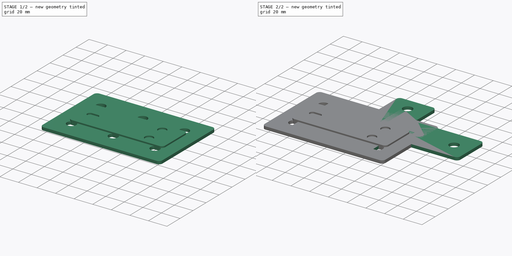
[diagram: build sequence overview — one tinted view per stage of 2, left to right]
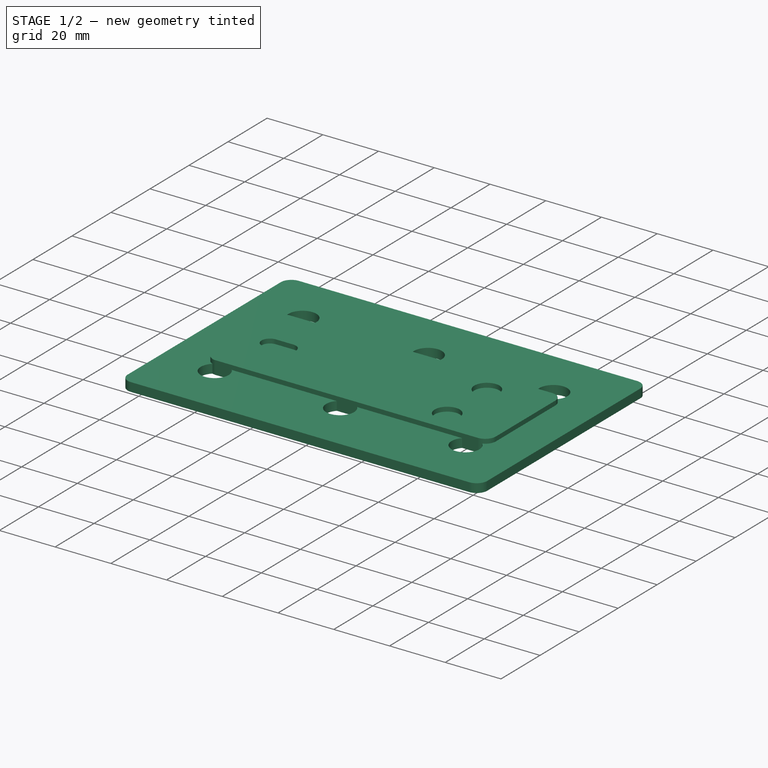
[diagram: stage 1 of 2 — iso view after this stage's code; geometry added in this stage tinted green]
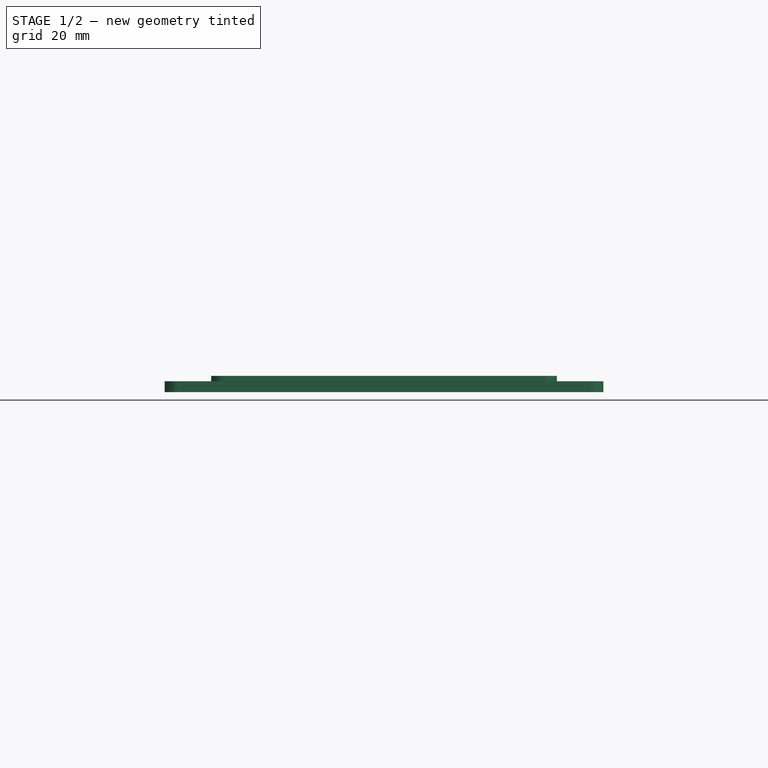
[diagram: stage 1 of 2 — front view after this stage's code; geometry added in this stage tinted green]
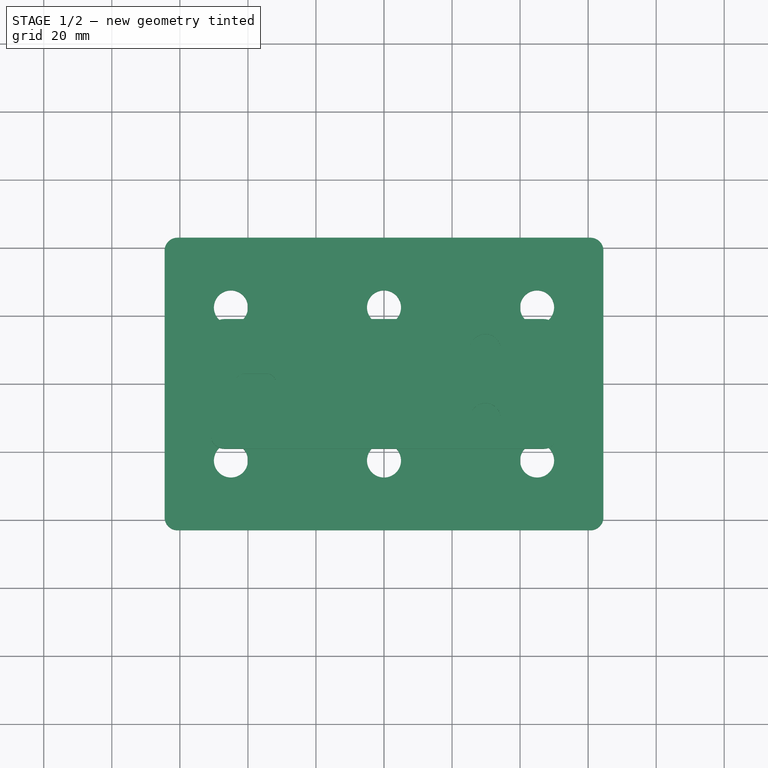
[diagram: stage 1 of 2 — top view after this stage's code; geometry added in this stage tinted green]
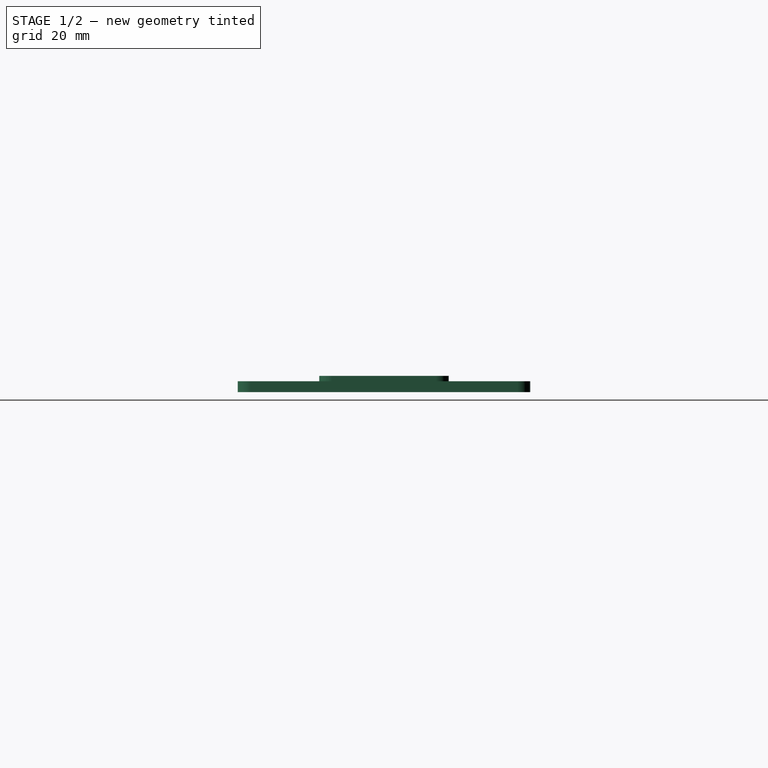
[diagram: stage 1 of 2 — right view after this stage's code; geometry added in this stage tinted green]
FCSTD DOCUMENT  (FreeCAD 0.20R)
Label: connection_plates
License: All rights reserved
LicenseURL: http://en.wikipedia.org/wiki/All_rights_reserved
objects: Sketcher::SketchObject×10, PartDesign::Body×10, Part::Part2DObjectPython×7, PartDesign::Pad×4, Spreadsheet::Sheet×1
note: 35 computed .brp shape members not serialized (recipe doc carries the construction recipe); baked Part::Feature solids carry a one-line shape summary decoded from their .brp

FEATURE [Part::Part2DObjectPython] Shape2DView  label="l_bracket_drawing"  # Draft 2D object (typed FeaturePython)
  AutoUpdate = true
  Base = -> Pad001
  Clip = false
  FuseArch = false
  HiddenLines = false
  InPlace = true
  OnlySolids = false
  Projection = (0,0,1)
  ProjectionMode = 0
  SegmentLength = 0.05
  Tessellation = false
  VisibleOnly = false
FEATURE [PartDesign::Body] Body001  label="l_bracket"
  Group = -> [Sketch001,Pad001,Shape2DView]
  Origin = -> Origin001
  Tip = -> Pad001
FEATURE [Part::Part2DObjectPython] Shape2DView001  label="4-hole_plate001"  # Draft 2D object (typed FeaturePython)
  AutoUpdate = true
  Base = -> Sketch
  Clip = false
  FuseArch = false
  HiddenLines = false
  InPlace = true
  OnlySolids = false
  Projection = (0,0,1)
  ProjectionMode = 0
  SegmentLength = 0.05
  Tessellation = false
  VisibleOnly = false
FEATURE [PartDesign::Body] Body  label="4-hole_plate"
  Group = -> [Sketch,Pad,Shape2DView001]
  Origin = -> Origin
  Tip = -> Pad
FEATURE [Sketcher::SketchObject] Sketch002
  FullyConstrained = true
  MapMode = 5
  Support = -> [XY_Plane002]
  sketch-geometry (18):
    g0: LineSegment StartX=-60.69 StartY=43 StartZ=0 EndX=60.69 EndY=43 EndZ=0
    g1: LineSegment StartX=64.5 StartY=39.19 StartZ=0 EndX=64.5 EndY=-39.19 EndZ=0
    g2: LineSegment StartX=60.69 StartY=-43 StartZ=0 EndX=-60.69 EndY=-43 EndZ=0
    g3: LineSegment StartX=-64.5 StartY=-39.19 StartZ=0 EndX=-64.5 EndY=39.19 EndZ=0
    g4: Circle CenterX=-45 CenterY=22.5 CenterZ=0 NormalX=0 NormalY=0 NormalZ=1 AngleXU=0 Radius=5
    g5: Circle CenterX=0 CenterY=22.5 CenterZ=0 NormalX=0 NormalY=0 NormalZ=1 AngleXU=0 Radius=5
    g6: Circle CenterX=0 CenterY=-22.5 CenterZ=0 NormalX=0 NormalY=0 NormalZ=1 AngleXU=0 Radius=5
    g7: Circle CenterX=-45 CenterY=-22.5 CenterZ=0 NormalX=0 NormalY=0 NormalZ=1 AngleXU=0 Radius=5
    g8: ArcOfCircle CenterX=60.69 CenterY=39.19 CenterZ=0 NormalX=0 NormalY=0 NormalZ=1 AngleXU=0 Radius=3.81 StartAngle=-9e-16 EndAngle=1.5708
    g9: GeomPoint X=64.5 Y=43 Z=0
    g10: ArcOfCircle CenterX=-60.69 CenterY=39.19 CenterZ=0 NormalX=0 NormalY=0 NormalZ=1 AngleXU=0 Radius=3.81 StartAngle=1.5708 EndAngle=3.14159
    g11: GeomPoint X=-64.5 Y=43 Z=0
    g12: ArcOfCircle CenterX=-60.69 CenterY=-39.19 CenterZ=0 NormalX=0 NormalY=0 NormalZ=1 AngleXU=0 Radius=3.81 StartAngle=3.14159 EndAngle=4.71239
    g13: GeomPoint X=-64.5 Y=-43 Z=0
    g14: ArcOfCircle CenterX=60.69 CenterY=-39.19 CenterZ=0 NormalX=0 NormalY=0 NormalZ=1 AngleXU=0 Radius=3.81 StartAngle=4.71239 EndAngle=6.28319
    g15: GeomPoint X=64.5 Y=-43 Z=0
    g16: Circle CenterX=45 CenterY=22.5 CenterZ=0 NormalX=0 NormalY=0 NormalZ=1 AngleXU=0 Radius=5
    g17: Circle CenterX=45 CenterY=-22.5 CenterZ=0 NormalX=0 NormalY=0 NormalZ=1 AngleXU=0 Radius=5
  constraints (43):
    c: Horizontal(g0)
    c: Horizontal(g2)
    c: Vertical(g1)
    c: Vertical(g3)
    c: Symmetric(g15,g11,g-1)
    c: DistanceY(g13,g11) = 86
    c: DistanceX(g11,g9) = 129
    c: Equal(g4,g7)
    c: Equal(g7,g6)
    c: Equal(g6,g5)
    c: Diameter(g4) = 10
    c: Symmetric(g4,g7,g-1)
    c: Horizontal(g5,g4)
    c: Vertical(g6,g5)
    c: DistanceY(g-1,g5) = 22.5
    c: PointOnObject(g9,g1)
    c: PointOnObject(g9,g0)
    c: Tangent(g1,g8) = 1.5708
    c: Tangent(g0,g8) = 1.5708
    c: PointOnObject(g11,g0)
    c: PointOnObject(g11,g3)
    c: Tangent(g0,g10) = 1.5708
    c: Tangent(g3,g10) = 1.5708
    c: PointOnObject(g13,g3)
    c: PointOnObject(g13,g2)
    c: Tangent(g3,g12) = 1.5708
    c: Tangent(g2,g12) = 1.5708
    c: PointOnObject(g15,g2)
    c: PointOnObject(g15,g1)
    c: Tangent(g2,g14) = 1.5708
    c: Tangent(g1,g14) = 1.5708
    c: Equal(g10,g8)
    c: Equal(g8,g14)
    c: Equal(g14,g12)
    c: Radius(g10) = 3.81
    c: DistanceX(g4,g5) = 45
    c: PointOnObject(g6,g-2)
    c: Equal(g16,g17)
    c: Equal(g17,g6)
    c: Horizontal(g6,g17)
    c: Vertical(g16,g17)
    c: Horizontal(g16,g5)
    c: Symmetric(g17,g7,g-2)
FEATURE [PartDesign::Pad] Pad002
  Direction = (0,0,1)
  Length = 3.175
  Length2 = 10
  Profile = -> Sketch002
  ReferenceAxis = -> Sketch002 [N_Axis]
  Type = 0
FEATURE [Part::Part2DObjectPython] Shape2DView002  label="6-hole_plate"  # Draft 2D object (typed FeaturePython)
  AutoUpdate = true
  Base = -> Sketch002
  Clip = false
  FuseArch = false
  HiddenLines = false
  InPlace = true
  OnlySolids = false
  Projection = (0,0,1)
  ProjectionMode = 0
  SegmentLength = 0.05
  Tessellation = false
  VisibleOnly = false
FEATURE [PartDesign::Body] Body002  label="6-hole_plate002"
  Group = -> [Sketch002,Pad002,Shape2DView002]
  Origin = -> Origin002
  Tip = -> Pad002
FEATURE [Sketcher::SketchObject] Sketch003
  FullyConstrained = true
  MapMode = 5
  Support = -> [XY_Plane003]
  sketch-geometry (19):
    g0: LineSegment StartX=-46.99 StartY=19.05 StartZ=0 EndX=46.99 EndY=19.05 EndZ=0
    g1: LineSegment StartX=50.8 StartY=15.24 StartZ=0 EndX=50.8 EndY=-15.24 EndZ=0
    g2: LineSegment StartX=46.99 StartY=-19.05 StartZ=0 EndX=-46.99 EndY=-19.05 EndZ=0
    g3: LineSegment StartX=-50.8 StartY=-15.24 StartZ=0 EndX=-50.8 EndY=15.24 EndZ=0
    g4: Circle CenterX=29.8 CenterY=10.16 CenterZ=0 NormalX=0 NormalY=0 NormalZ=1 AngleXU=0 Radius=4.5
    g5: Circle CenterX=29.8 CenterY=-10.16 CenterZ=0 NormalX=0 NormalY=0 NormalZ=1 AngleXU=0 Radius=4.5
    g6: ArcOfCircle CenterX=-40.939 CenterY=0 CenterZ=0 NormalX=0 NormalY=0 NormalZ=1 AngleXU=0 Radius=3 StartAngle=1.5708 EndAngle=4.71239
    g7: ArcOfCircle CenterX=-34.589 CenterY=0 CenterZ=0 NormalX=0 NormalY=0 NormalZ=1 AngleXU=0 Radius=3 StartAngle=4.71239 EndAngle=7.85398
    g8: LineSegment StartX=-40.939 StartY=-3 StartZ=0 EndX=-34.589 EndY=-3 EndZ=0
    g9: LineSegment StartX=-34.589 StartY=3 StartZ=0 EndX=-40.939 EndY=3 EndZ=0
    g10: GeomPoint X=-37.764 Y=0 Z=0
    g11: ArcOfCircle CenterX=-46.99 CenterY=15.24 CenterZ=0 NormalX=0 NormalY=0 NormalZ=1 AngleXU=0 Radius=3.81 StartAngle=1.5708 EndAngle=3.14159
    g12: GeomPoint X=-50.8 Y=19.05 Z=0
    g13: ArcOfCircle CenterX=-46.99 CenterY=-15.24 CenterZ=0 NormalX=0 NormalY=0 NormalZ=1 AngleXU=0 Radius=3.81 StartAngle=3.14159 EndAngle=4.71239
    g14: GeomPoint X=-50.8 Y=-19.05 Z=0
    g15: ArcOfCircle CenterX=46.99 CenterY=-15.24 CenterZ=0 NormalX=0 NormalY=0 NormalZ=1 AngleXU=0 Radius=3.81 StartAngle=4.71239 EndAngle=6.28319
    g16: GeomPoint X=50.8 Y=-19.05 Z=0
    g17: ArcOfCircle CenterX=46.99 CenterY=15.24 CenterZ=0 NormalX=0 NormalY=0 NormalZ=1 AngleXU=0 Radius=3.81 StartAngle=5e-16 EndAngle=1.5708
    g18: GeomPoint X=50.8 Y=19.05 Z=0
  constraints (43):
    c: Horizontal(g0)
    c: Horizontal(g2)
    c: Vertical(g1)
    c: Vertical(g3)
    c: DistanceX(g12,g18) = 101.6
    c: Symmetric(g18,g14,g-1)
    c: DistanceY(g14,g12) = 38.1
    c: Symmetric(g4,g5,g-1)
    c: Tangent(g6,g8) = -1.5708
    c: Tangent(g8,g7) = -1.5708
    c: Tangent(g7,g9) = -1.5708
    c: Tangent(g9,g6) = -1.5708
    c: Equal(g6,g7)
    c: PointOnObject(g6,g-1)
    c: PointOnObject(g7,g-1)
    c: DistanceX(g10,g5) = 67.564
    c: Symmetric(g6,g7,g10)
    c: Diameter(g7) = 6
    c: DistanceX(g9,g9) = 6.35
    c: Diameter(g4) = 9
    c: Equal(g5,g4)
    c: DistanceY(g-1,g4) = 10.16
    c: PointOnObject(g12,g3)
    c: PointOnObject(g12,g0)
    c: Tangent(g3,g11) = 1.5708
    c: Tangent(g0,g11) = 1.5708
    c: PointOnObject(g14,g3)
    c: PointOnObject(g14,g2)
    c: Tangent(g3,g13) = 1.5708
    c: Tangent(g2,g13) = 1.5708
    c: PointOnObject(g16,g2)
    c: PointOnObject(g16,g1)
    c: Tangent(g2,g15) = 1.5708
    c: Tangent(g1,g15) = 1.5708
    c: PointOnObject(g18,g1)
    c: PointOnObject(g18,g0)
    c: Tangent(g1,g17) = 1.5708
    c: Tangent(g0,g17) = 1.5708
    c: Equal(g11,g13)
    c: Equal(g13,g15)
    c: Equal(g15,g17)
    c: Radius(g11) = 3.81
    c: DistanceX(g5,g1) = 21
FEATURE [PartDesign::Pad] Pad003
  Direction = (0,0,1)
  Length = 4.7625
  Length2 = 10
  Profile = -> Sketch003
  ReferenceAxis = -> Sketch003 [N_Axis]
  Type = 0
FEATURE [Part::Part2DObjectPython] Shape2DView003  label="trolley-bracket"  # Draft 2D object (typed FeaturePython)
  AutoUpdate = true
  Base = -> Pad003
  Clip = false
  FuseArch = false
  HiddenLines = false
  InPlace = true
  OnlySolids = false
  Projection = (0,0,1)
  ProjectionMode = 0
  SegmentLength = 0.05
  Tessellation = false
  VisibleOnly = false
FEATURE [PartDesign::Body] Body003  label="window-trolley-bracket"
  Group = -> [Sketch003,Pad003,Shape2DView003]
  Origin = -> Origin003
  Tip = -> Pad003
FEATURE [Sketcher::SketchObject] Sketch004
  FullyConstrained = true
  MapMode = 5
  Support = -> [XY_Plane004]
  sketch-geometry (14):
    g0: LineSegment StartX=-23.2 StartY=25.4 StartZ=0 EndX=23.2 EndY=25.4 EndZ=0
    g1: LineSegment StartX=27.01 StartY=21.59 StartZ=0 EndX=27.01 EndY=-21.59 EndZ=0
    g2: LineSegment StartX=23.2 StartY=-25.4 StartZ=0 EndX=-23.2 EndY=-25.4 EndZ=0
    g3: LineSegment StartX=-27.01 StartY=-21.59 StartZ=0 EndX=-27.01 EndY=21.59 EndZ=0
    g4: Circle CenterX=6.01 CenterY=16.51 CenterZ=0 NormalX=0 NormalY=0 NormalZ=1 AngleXU=0 Radius=4.5
    g5: Circle CenterX=6.01 CenterY=-16.51 CenterZ=0 NormalX=0 NormalY=0 NormalZ=1 AngleXU=0 Radius=4.5
    g6: ArcOfCircle CenterX=23.2 CenterY=21.59 CenterZ=0 NormalX=0 NormalY=0 NormalZ=1 AngleXU=0 Radius=3.81 StartAngle=0 EndAngle=1.5708
    g7: GeomPoint X=27.01 Y=25.4 Z=0
    g8: ArcOfCircle CenterX=-23.2 CenterY=21.59 CenterZ=0 NormalX=0 NormalY=0 NormalZ=1 AngleXU=0 Radius=3.81 StartAngle=1.5708 EndAngle=3.14159
    g9: GeomPoint X=-27.01 Y=25.4 Z=0
    g10: ArcOfCircle CenterX=-23.2 CenterY=-21.59 CenterZ=0 NormalX=0 NormalY=0 NormalZ=1 AngleXU=0 Radius=3.81 StartAngle=3.14159 EndAngle=4.71239
    g11: GeomPoint X=-27.01 Y=-25.4 Z=0
    g12: ArcOfCircle CenterX=23.2 CenterY=-21.59 CenterZ=0 NormalX=0 NormalY=0 NormalZ=1 AngleXU=0 Radius=3.81 StartAngle=4.71239 EndAngle=6.28319
    g13: GeomPoint X=27.01 Y=-25.4 Z=0
  constraints (32):
    c: Horizontal(g0)
    c: Horizontal(g2)
    c: Vertical(g1)
    c: Vertical(g3)
    c: Symmetric(g7,g11,g-1)
    c: DistanceY(g13,g7) = 50.8
    c: Equal(g4,g5)
    c: Symmetric(g5,g4,g-1)
    c: Diameter(g4) = 9
    c: DistanceX(g4,g7) = 21
    c: DistanceX(g9,g4) = 33.02
    c: DistanceY(g5,g-1) = 16.51
    c: PointOnObject(g7,g1)
    c: PointOnObject(g7,g0)
    c: Tangent(g1,g6) = 1.5708
    c: Tangent(g0,g6) = 1.5708
    c: PointOnObject(g9,g0)
    c: PointOnObject(g9,g3)
    c: Tangent(g0,g8) = 1.5708
    c: Tangent(g3,g8) = 1.5708
    c: PointOnObject(g11,g3)
    c: PointOnObject(g11,g2)
    c: Tangent(g3,g10) = 1.5708
    c: Tangent(g2,g10) = 1.5708
    c: PointOnObject(g13,g2)
    c: PointOnObject(g13,g1)
    c: Tangent(g2,g12) = 1.5708
    c: Tangent(g1,g12) = 1.5708
    c: Equal(g8,g6)
    c: Equal(g6,g12)
    c: Equal(g12,g10)
    c: Radius(g8) = 3.81
FEATURE [PartDesign::Body] Body004  label="window-inside-bracket"
  Group = -> [Sketch004]
  Origin = -> Origin004
FEATURE [Sketcher::SketchObject] Sketch005
  FullyConstrained = false
  MapMode = 5
  Support = -> [XY_Plane005]
  sketch-geometry (30):
    g0: LineSegment StartX=43.5 StartY=0 StartZ=0 EndX=43.5 EndY=-90 EndZ=0
    g1: LineSegment StartX=43.5 StartY=-90 StartZ=0 EndX=-43.5 EndY=-90 EndZ=0
    g2: LineSegment StartX=-43.5 StartY=-90 StartZ=0 EndX=-43.5 EndY=0 EndZ=0
    g3: Circle CenterX=-22.5 CenterY=66 CenterZ=0 NormalX=0 NormalY=0 NormalZ=1 AngleXU=0 Radius=4.5
    g4: Circle CenterX=-22.5 CenterY=21 CenterZ=0 NormalX=0 NormalY=0 NormalZ=1 AngleXU=0 Radius=4.5
    g5: Circle CenterX=-22.5 CenterY=-24 CenterZ=0 NormalX=0 NormalY=0 NormalZ=1 AngleXU=0 Radius=4.5
    g6: Circle CenterX=-22.5 CenterY=-69 CenterZ=0 NormalX=0 NormalY=0 NormalZ=1 AngleXU=0 Radius=4.5
    g7: Circle CenterX=22.5 CenterY=-24 CenterZ=0 NormalX=0 NormalY=0 NormalZ=1 AngleXU=0 Radius=4.5
    g8: Circle CenterX=22.5 CenterY=-69 CenterZ=0 NormalX=0 NormalY=0 NormalZ=1 AngleXU=0 Radius=4.5
    g9: Circle CenterX=22.5 CenterY=21 CenterZ=0 NormalX=0 NormalY=0 NormalZ=1 AngleXU=0 Radius=4.5
    g10: Circle CenterX=22.5 CenterY=66 CenterZ=0 NormalX=0 NormalY=0 NormalZ=1 AngleXU=0 Radius=4.5
    g11: Circle CenterX=-67.5 CenterY=66 CenterZ=0 NormalX=0 NormalY=0 NormalZ=1 AngleXU=0 Radius=4.5
    g12: Circle CenterX=-67.5 CenterY=21 CenterZ=0 NormalX=0 NormalY=0 NormalZ=1 AngleXU=0 Radius=4.5
    g13: Circle CenterX=67.5 CenterY=66 CenterZ=0 NormalX=0 NormalY=0 NormalZ=1 AngleXU=0 Radius=4.5
    g14: Circle CenterX=67.5 CenterY=21 CenterZ=0 NormalX=0 NormalY=0 NormalZ=1 AngleXU=0 Radius=4.5
    g15: LineSegment StartX=-67.5 StartY=66 StartZ=0 EndX=-22.5 EndY=66 EndZ=0
    g16: LineSegment StartX=-22.5 StartY=66 StartZ=0 EndX=22.5 EndY=66 EndZ=0
    g17: LineSegment StartX=22.5 StartY=66 StartZ=0 EndX=67.5 EndY=66 EndZ=0
    g18: LineSegment StartX=-22.5 StartY=66 StartZ=0 EndX=-22.5 EndY=21 EndZ=0
    g19: LineSegment StartX=-22.5 StartY=-24 StartZ=0 EndX=-22.5 EndY=21 EndZ=0
    g20: LineSegment StartX=-22.5 StartY=-24 StartZ=0 EndX=-22.5 EndY=-69 EndZ=0
    g21: LineSegment StartX=88.5 StartY=87 StartZ=0 EndX=88.5 EndY=0 EndZ=0
    g22: LineSegment StartX=88.5 StartY=0 StartZ=0 EndX=43.5 EndY=0 EndZ=0
    g23: LineSegment StartX=-43.5 StartY=0 StartZ=0 EndX=-88.5 EndY=0 EndZ=0
    g24: LineSegment StartX=-88.5 StartY=0 StartZ=0 EndX=-88.5 EndY=87 EndZ=0
    g25: LineSegment StartX=88.5 StartY=87 StartZ=0 EndX=-88.5 EndY=87 EndZ=0
    g26: Circle CenterX=-106.613 CenterY=66 CenterZ=0 NormalX=0 NormalY=0 NormalZ=1 AngleXU=0 Radius=4.5
    g27: Circle CenterX=-106.613 CenterY=21 CenterZ=0 NormalX=0 NormalY=0 NormalZ=1 AngleXU=0 Radius=4.5
    g28: Circle CenterX=106.658 CenterY=21 CenterZ=0 NormalX=0 NormalY=0 NormalZ=1 AngleXU=0 Radius=4.5
    g29: Circle CenterX=106.658 CenterY=66 CenterZ=0 NormalX=0 NormalY=0 NormalZ=1 AngleXU=0 Radius=4.5
  constraints (79):
    c: Coincident(g0,g1)
    c: Coincident(g1,g2)
    c: Horizontal(g1)
    c: Vertical(g0)
    c: Vertical(g2)
    c: Equal(g11,g12)
    c: Equal(g12,g3)
    c: Equal(g3,g4)
    c: Equal(g4,g5)
    c: Equal(g5,g6)
    c: Equal(g6,g8)
    c: Equal(g8,g7)
    c: Equal(g7,g9)
    c: Equal(g9,g10)
    c: Equal(g10,g13)
    c: Equal(g13,g14)
    c: Diameter(g11) = 9
    c: Horizontal(g11,g3)
    c: Horizontal(g10,g13)
    c: Horizontal(g12,g4)
    c: Horizontal(g4,g9)
    c: Horizontal(g9,g14)
    c: Horizontal(g5,g7)
    c: Horizontal(g8,g6)
    c: Vertical(g6,g5)
    c: Vertical(g5,g4)
    c: Vertical(g4,g3)
    c: Vertical(g12,g11)
    c: Vertical(g10,g9)
    c: Vertical(g9,g7)
    c: Vertical(g7,g8)
    c: Vertical(g14,g13)
    c: Coincident(g15,g11)
    c: Coincident(g15,g3)
    c: Coincident(g16,g3)
    c: Coincident(g16,g10)
    c: Coincident(g17,g10)
    c: Coincident(g17,g13)
    c: Equal(g17,g16)
    c: Equal(g16,g15)
    c: DistanceX(g17,g17) = 45
    c: Coincident(g18,g3)
    c: Coincident(g18,g4)
    c: Coincident(g19,g5)
    c: Coincident(g19,g4)
    c: Coincident(g20,g5)
    c: Coincident(g20,g6)
    c: Equal(g18,g19)
    c: Equal(g19,g20)
    c: PointOnObject(g21,g-1)
    c: Vertical(g21)
    c: Coincident(g21,g22)
    c: Horizontal(g22)
    c: PointOnObject(g23,g-1)
    c: Coincident(g23,g24)
    c: Vertical(g24)
    c: Coincident(g2,g23)
    c: Coincident(g0,g22)
    c: Symmetric(g2,g0,g-2)
    c: Symmetric(g21,g24,g-2)
    c: Coincident(g25,g21)
    c: Coincident(g25,g24)
    c: Symmetric(g10,g3,g-2)
    c: Equal(g18,g16)
    c: DistanceX(g13,g21) = 21
    c: DistanceY(g13,g21) = 21
    c: DistanceY(g21,g14) = 21
    c: DistanceX(g7,g0) = 21
    c: DistanceY(g0,g8) = 21
    c: Equal(g13,g29)
    c: Equal(g29,g28)
    c: Equal(g28,g27)
    c: Equal(g27,g26)
    c: Horizontal(g26,g29)
    c: Horizontal(g29,g13)
    c: Horizontal(g27,g12)
    c: Horizontal(g12,g28)
    c: Vertical(g27,g26)
    c: Vertical(g29,g28)
FEATURE [PartDesign::Body] Body005  label="leg_corner-bracket"
  Group = -> [Sketch005]
  Origin = -> Origin005
FEATURE [Sketcher::SketchObject] Sketch006
  FullyConstrained = true
  MapMode = 5
  Support = -> [XY_Plane006]
  sketch-geometry (33):
    g0: Circle CenterX=59.6 CenterY=-1.4e-15 CenterZ=0 NormalX=0 NormalY=0 NormalZ=1 AngleXU=0 Radius=4.5
    g1: Circle CenterX=97.7 CenterY=-1.4e-15 CenterZ=0 NormalX=0 NormalY=0 NormalZ=1 AngleXU=0 Radius=4.5
    g2: Circle CenterX=21.5 CenterY=-1.4e-15 CenterZ=0 NormalX=0 NormalY=0 NormalZ=1 AngleXU=0 Radius=4.5
    g3: Circle CenterX=21.5 CenterY=38.1 CenterZ=0 NormalX=0 NormalY=0 NormalZ=1 AngleXU=0 Radius=4.5
    g4: Circle CenterX=21.5 CenterY=-38.1 CenterZ=0 NormalX=0 NormalY=0 NormalZ=1 AngleXU=0 Radius=4.5
    g5: LineSegment StartX=97.7 StartY=-1.4e-15 StartZ=0 EndX=59.6 EndY=-1.4e-15 EndZ=0
    g6: LineSegment StartX=59.6 StartY=-1.4e-15 StartZ=0 EndX=21.5 EndY=-1.4e-15 EndZ=0
    g7: LineSegment StartX=21.5 StartY=-1.4e-15 StartZ=0 EndX=21.5 EndY=-38.1 EndZ=0
    g8: LineSegment StartX=21.5 StartY=-1.4e-15 StartZ=0 EndX=21.5 EndY=38.1 EndZ=0
    g9: LineSegment StartX=0 StartY=55.29 StartZ=0 EndX=0 EndY=-55.29 EndZ=0
    g10: LineSegment StartX=3.81 StartY=-59.1 StartZ=0 EndX=39.19 EndY=-59.1 EndZ=0
    g11: LineSegment StartX=43 StartY=-55.29 StartZ=0 EndX=43 EndY=-25.31 EndZ=0
    g12: LineSegment StartX=46.81 StartY=-21.5 StartZ=0 EndX=114.89 EndY=-21.5 EndZ=0
    g13: LineSegment StartX=118.7 StartY=-17.69 StartZ=0 EndX=118.7 EndY=17.69 EndZ=0
    g14: LineSegment StartX=114.89 StartY=21.5 StartZ=0 EndX=46.81 EndY=21.5 EndZ=0
    g15: LineSegment StartX=43 StartY=25.31 StartZ=0 EndX=43 EndY=55.29 EndZ=0
    g16: LineSegment StartX=39.19 StartY=59.1 StartZ=0 EndX=3.81 EndY=59.1 EndZ=0
    g17: ArcOfCircle CenterX=39.19 CenterY=55.29 CenterZ=0 NormalX=0 NormalY=0 NormalZ=1 AngleXU=0 Radius=3.81 StartAngle=0 EndAngle=1.5708
    g18: GeomPoint X=43 Y=59.1 Z=0
    g19: ArcOfCircle CenterX=3.81 CenterY=55.29 CenterZ=0 NormalX=0 NormalY=0 NormalZ=1 AngleXU=0 Radius=3.81 StartAngle=1.5708 EndAngle=3.14159
    g20: GeomPoint X=0 Y=59.1 Z=0
    g21: ArcOfCircle CenterX=3.81 CenterY=-55.29 CenterZ=0 NormalX=0 NormalY=0 NormalZ=1 AngleXU=0 Radius=3.81 StartAngle=3.14159 EndAngle=4.71239
    g22: GeomPoint X=0 Y=-59.1 Z=0
    g23: ArcOfCircle CenterX=39.19 CenterY=-55.29 CenterZ=0 NormalX=0 NormalY=0 NormalZ=1 AngleXU=0 Radius=3.81 StartAngle=4.71239 EndAngle=6.28319
    g24: GeomPoint X=43 Y=-59.1 Z=0
    g25: ArcOfCircle CenterX=114.89 CenterY=17.69 CenterZ=0 NormalX=0 NormalY=0 NormalZ=1 AngleXU=0 Radius=3.81 StartAngle=6e-16 EndAngle=1.5708
    g26: GeomPoint X=118.7 Y=21.5 Z=0
    g27: ArcOfCircle CenterX=114.89 CenterY=-17.69 CenterZ=0 NormalX=0 NormalY=0 NormalZ=1 AngleXU=0 Radius=3.81 StartAngle=4.71239 EndAngle=6.28319
    g28: GeomPoint X=118.7 Y=-21.5 Z=0
    g29: ArcOfCircle CenterX=46.81 CenterY=25.31 CenterZ=0 NormalX=0 NormalY=0 NormalZ=1 AngleXU=0 Radius=3.81 StartAngle=3.14159 EndAngle=4.71239
    g30: GeomPoint X=43 Y=21.5 Z=0
    g31: ArcOfCircle CenterX=46.81 CenterY=-25.31 CenterZ=0 NormalX=0 NormalY=0 NormalZ=1 AngleXU=0 Radius=3.81 StartAngle=1.5708 EndAngle=3.14159
    g32: GeomPoint X=43 Y=-21.5 Z=0
  constraints (76):
    c: Vertical(g4,g2)
    c: Vertical(g2,g3)
    c: Horizontal(g2,g0)
    c: Horizontal(g0,g1)
    c: Equal(g3,g2)
    c: Equal(g2,g4)
    c: Equal(g4,g0)
    c: Equal(g0,g1)
    c: Diameter(g1) = 9
    c: Coincident(g5,g1)
    c: Coincident(g5,g0)
    c: Coincident(g6,g0)
    c: Coincident(g6,g2)
    c: Coincident(g7,g2)
    c: Coincident(g7,g4)
    c: Coincident(g8,g2)
    c: Coincident(g8,g3)
    c: Equal(g5,g6)
    c: Equal(g6,g7)
    c: Equal(g7,g8)
    c: DistanceX(g5,g5) = 38.1
    c: PointOnObject(g20,g-2)
    c: Vertical(g11)
    c: Horizontal(g12)
    c: Horizontal(g14)
    c: Vertical(g15)
    c: Horizontal(g16)
    c: DistanceY(g22,g4) = 21
    c: Symmetric(g20,g22,g-1)
    c: DistanceY(g3,g20) = 21
    c: Symmetric(g28,g26,g-1)
    c: DistanceY(g28,g26) = 43
    c: DistanceX(g1,g26) = 21
    c: Symmetric(g22,g24,g7)
    c: PointOnObject(g18,g16)
    c: PointOnObject(g18,g15)
    c: Tangent(g16,g17) = -1.5708
    c: Tangent(g15,g17) = -1.5708
    c: PointOnObject(g20,g9)
    c: PointOnObject(g20,g16)
    c: Tangent(g9,g19) = -1.5708
    c: Tangent(g16,g19) = -1.5708
    c: PointOnObject(g22,g9)
    c: PointOnObject(g22,g10)
    c: Tangent(g9,g21) = -1.5708
    c: Tangent(g10,g21) = -1.5708
    c: PointOnObject(g24,g10)
    c: PointOnObject(g24,g11)
    c: Tangent(g10,g23) = -1.5708
    c: Tangent(g11,g23) = -1.5708
    c: PointOnObject(g26,g14)
    c: PointOnObject(g26,g13)
    c: Tangent(g14,g25) = -1.5708
    c: Tangent(g13,g25) = -1.5708
    c: PointOnObject(g28,g13)
    c: PointOnObject(g28,g12)
    c: Tangent(g13,g27) = -1.5708
    c: Tangent(g12,g27) = -1.5708
    c: Equal(g19,g17)
    c: Equal(g17,g21)
    c: Equal(g21,g23)
    c: Equal(g23,g27)
    c: Equal(g27,g25)
    c: Radius(g17) = 3.81
    c: Equal(g16,g13)
    c: Equal(g10,g13)
    c: PointOnObject(g30,g14)
    c: PointOnObject(g30,g15)
    c: Tangent(g14,g29) = 1.5708
    c: Tangent(g15,g29) = 1.5708
    c: PointOnObject(g32,g11)
    c: PointOnObject(g32,g12)
    c: Tangent(g11,g31) = 1.5708
    c: Tangent(g12,g31) = 1.5708
    c: Equal(g29,g31)
    c: Equal(g31,g25)
FEATURE [Part::Part2DObjectPython] Shape2DView004  label="t-bracket"  # Draft 2D object (typed FeaturePython)
  AutoUpdate = true
  Base = -> Sketch006
  Clip = false
  FuseArch = false
  HiddenLines = false
  InPlace = true
  OnlySolids = false
  Projection = (0,0,1)
  ProjectionMode = 0
  SegmentLength = 0.05
  Tessellation = false
  VisibleOnly = false
FEATURE [PartDesign::Body] Body006  label="T-bracket"
  Group = -> [Sketch006,Shape2DView004]
  Origin = -> Origin006
FEATURE [Sketcher::SketchObject] Sketch007
  FullyConstrained = true
  MapMode = 5
  Support = -> [XY_Plane007]
  expr: Constraints[23] = <<Spreadsheet>>.hole_diameter
  expr: Constraints[43] = <<Spreadsheet>>.corner_radius
  sketch-geometry (19):
    g0: LineSegment StartX=4 StartY=0 StartZ=0 EndX=174.999 EndY=0 EndZ=0
    g1: LineSegment StartX=178.999 StartY=4 StartZ=0 EndX=178.999 EndY=40 EndZ=0
    g2: LineSegment StartX=174.999 StartY=44 StartZ=0 EndX=4 EndY=44 EndZ=0
    g3: LineSegment StartX=0 StartY=40 StartZ=0 EndX=0 EndY=4 EndZ=0
    g4: Circle CenterX=156.999 CenterY=22 CenterZ=0 NormalX=0 NormalY=0 NormalZ=1 AngleXU=0 Radius=4.5
    g5: Circle CenterX=111.999 CenterY=22 CenterZ=0 NormalX=0 NormalY=0 NormalZ=1 AngleXU=0 Radius=4.5
    g6: Circle CenterX=66.9989 CenterY=22 CenterZ=0 NormalX=0 NormalY=0 NormalZ=1 AngleXU=0 Radius=4.5
    g7: Circle CenterX=21.9989 CenterY=22 CenterZ=0 NormalX=0 NormalY=0 NormalZ=1 AngleXU=0 Radius=4.5
    g8: LineSegment StartX=21.9989 StartY=22 StartZ=0 EndX=66.9989 EndY=22 EndZ=0
    g9: LineSegment StartX=66.9989 StartY=22 StartZ=0 EndX=111.999 EndY=22 EndZ=0
    g10: LineSegment StartX=111.999 StartY=22 StartZ=0 EndX=156.999 EndY=22 EndZ=0
    g11: ArcOfCircle CenterX=174.999 CenterY=40 CenterZ=0 NormalX=0 NormalY=0 NormalZ=1 AngleXU=0 Radius=4 StartAngle=5e-16 EndAngle=1.5708
    g12: GeomPoint X=178.999 Y=44 Z=0
    g13: ArcOfCircle CenterX=174.999 CenterY=4 CenterZ=0 NormalX=0 NormalY=0 NormalZ=1 AngleXU=0 Radius=4 StartAngle=4.71239 EndAngle=6.28319
    g14: GeomPoint X=178.999 Y=0 Z=0
    g15: ArcOfCircle CenterX=4 CenterY=4 CenterZ=0 NormalX=0 NormalY=0 NormalZ=1 AngleXU=0 Radius=4 StartAngle=3.14159 EndAngle=4.71239
    g16: GeomPoint X=0 Y=0 Z=0
    g17: ArcOfCircle CenterX=4 CenterY=40 CenterZ=0 NormalX=0 NormalY=0 NormalZ=1 AngleXU=0 Radius=4 StartAngle=1.5708 EndAngle=3.14159
    g18: GeomPoint X=0 Y=44 Z=0
  constraints (44):
    c: Horizontal(g0)
    c: Horizontal(g2)
    c: Vertical(g1)
    c: Vertical(g3)
    c: Equal(g7,g6)
    c: Equal(g6,g5)
    c: Equal(g5,g4)
    c: Horizontal(g5,g6)
    c: Horizontal(g6,g7)
    c: DistanceY(g14,g12) = 44
    c: Coincident(g8,g7)
    c: Coincident(g8,g6)
    c: Coincident(g9,g6)
    c: Coincident(g9,g5)
    c: Coincident(g10,g5)
    c: Coincident(g10,g4)
    c: Equal(g8,g9)
    c: Equal(g9,g10)
    c: DistanceX(g10,g10) = 45
    c: Symmetric(g14,g12,g10)
    c: Coincident(g16,g-1)
    c: DistanceX(g4,g14) = 22
    c: DistanceX(g16,g7) = 21.9989
    c: Diameter(g6) = 9
    c: PointOnObject(g12,g2)
    c: PointOnObject(g12,g1)
    c: Tangent(g2,g11) = -1.5708
    c: Tangent(g1,g11) = -1.5708
    c: PointOnObject(g14,g1)
    c: PointOnObject(g14,g0)
    c: Tangent(g1,g13) = -1.5708
    c: Tangent(g0,g13) = -1.5708
    c: PointOnObject(g16,g0)
    c: PointOnObject(g16,g3)
    c: Tangent(g0,g15) = -1.5708
    c: Tangent(g3,g15) = -1.5708
    c: PointOnObject(g18,g3)
    c: PointOnObject(g18,g2)
    c: Tangent(g3,g17) = -1.5708
    c: Tangent(g2,g17) = -1.5708
    c: Equal(g17,g15)
    c: Equal(g15,g13)
    c: Equal(g13,g11)
    c: Radius(g11) = 4
FEATURE [PartDesign::Body] Body007  label="4-hole-inline"
  Group = -> [Sketch007]
  Origin = -> Origin007
FEATURE [Spreadsheet::Sheet] Spreadsheet
  cells = A1=hole_diameter; B1(hole_diameter)=9; C1=mm; A2=width; B2=44; C2=mm; A3=corner_radius; B3(corner_radius)=4; C3=mm
FEATURE [Sketcher::SketchObject] Sketch008  label="3-hole"
  FullyConstrained = false
  MapMode = 5
  Support = -> [XY_Plane008]
  expr: Constraints[33] = <<Spreadsheet>>.corner_radius
  expr: Constraints[36] = <<Spreadsheet>>.hole_diameter
  sketch-geometry (17):
    g0: LineSegment StartX=4 StartY=0 StartZ=0 EndX=129.999 EndY=0 EndZ=0
    g1: LineSegment StartX=133.999 StartY=4 StartZ=0 EndX=133.999 EndY=40 EndZ=0
    g2: LineSegment StartX=129.999 StartY=44 StartZ=0 EndX=4 EndY=44 EndZ=0
    g3: LineSegment StartX=0 StartY=40 StartZ=0 EndX=0 EndY=4 EndZ=0
    g4: Circle CenterX=111.999 CenterY=22 CenterZ=0 NormalX=0 NormalY=0 NormalZ=1 AngleXU=0 Radius=4.5
    g5: Circle CenterX=66.9989 CenterY=22 CenterZ=0 NormalX=0 NormalY=0 NormalZ=1 AngleXU=0 Radius=4.5
    g6: Circle CenterX=21.9989 CenterY=22 CenterZ=0 NormalX=0 NormalY=0 NormalZ=1 AngleXU=0 Radius=4.5
    g7: LineSegment StartX=21.9989 StartY=22 StartZ=0 EndX=66.9989 EndY=22 EndZ=0
    g8: LineSegment StartX=66.9989 StartY=22 StartZ=0 EndX=111.999 EndY=22 EndZ=0
    g9: ArcOfCircle CenterX=129.999 CenterY=40 CenterZ=0 NormalX=0 NormalY=0 NormalZ=1 AngleXU=0 Radius=4 StartAngle=4e-16 EndAngle=1.5708
    g10: GeomPoint X=133.999 Y=44 Z=0
    g11: ArcOfCircle CenterX=129.999 CenterY=4 CenterZ=0 NormalX=0 NormalY=0 NormalZ=1 AngleXU=0 Radius=4 StartAngle=4.71239 EndAngle=6.28319
    g12: GeomPoint X=133.999 Y=0 Z=0
    g13: ArcOfCircle CenterX=4 CenterY=4 CenterZ=0 NormalX=0 NormalY=0 NormalZ=1 AngleXU=0 Radius=4 StartAngle=3.14159 EndAngle=4.71239
    g14: GeomPoint X=0 Y=0 Z=0
    g15: ArcOfCircle CenterX=4 CenterY=40 CenterZ=0 NormalX=0 NormalY=0 NormalZ=1 AngleXU=0 Radius=4 StartAngle=1.5708 EndAngle=3.14159
    g16: GeomPoint X=0 Y=44 Z=0
  constraints (37):
    c: Horizontal(g0)
    c: Horizontal(g2)
    c: Vertical(g1)
    c: Vertical(g3)
    c: Equal(g5,g4)
    c: DistanceY(g12,g10) = 44
    c: Coincident(g7,g6)
    c: Coincident(g8,g5)
    c: Coincident(g8,g4)
    c: DistanceX(g8,g8) = 45
    c: Symmetric(g12,g10,g8)
    c: Coincident(g14,g-1)
    c: DistanceX(g4,g12) = 22
    c: DistanceX(g14,g6) = 21.9989
    c: PointOnObject(g10,g2)
    c: PointOnObject(g10,g1)
    c: Tangent(g2,g9) = -1.5708
    c: Tangent(g1,g9) = -1.5708
    c: PointOnObject(g12,g1)
    c: PointOnObject(g12,g0)
    c: Tangent(g1,g11) = -1.5708
    c: Tangent(g0,g11) = -1.5708
    c: PointOnObject(g14,g0)
    c: PointOnObject(g14,g3)
    c: Tangent(g0,g13) = -1.5708
    c: Tangent(g3,g13) = -1.5708
    c: PointOnObject(g16,g3)
    c: PointOnObject(g16,g2)
    c: Tangent(g3,g15) = -1.5708
    c: Tangent(g2,g15) = -1.5708
    c: Equal(g15,g13)
    c: Equal(g13,g11)
    c: Equal(g11,g9)
    c: Radius(g9) = 4
    c: Coincident(g7,g5)
    c: Equal(g7,g8)
    c: Diameter(g6) = 9
FEATURE [Part::Part2DObjectPython] Shape2DView005  label="3-hole-2d"  # Draft 2D object (typed FeaturePython)
  AutoUpdate = true
  Base = -> Sketch008
  Clip = false
  FuseArch = false
  HiddenLines = false
  InPlace = true
  OnlySolids = false
  Projection = (0,0,1)
  ProjectionMode = 0
  SegmentLength = 0.05
  Tessellation = false
  VisibleOnly = false
FEATURE [PartDesign::Body] Body008  label="3-hole-inline"
  Group = -> [Sketch008,Shape2DView005]
  Origin = -> Origin008
FEATURE [Sketcher::SketchObject] Sketch009
  FullyConstrained = false
  MapMode = 5
  Support = -> [XY_Plane009]
  sketch-geometry (28):
    g0: LineSegment StartX=0 StartY=781.6 StartZ=0 EndX=45 EndY=781.6 EndZ=0
    g1: LineSegment StartX=45 StartY=781.6 StartZ=0 EndX=45 EndY=0 EndZ=0
    g2: LineSegment StartX=45 StartY=0 StartZ=0 EndX=0 EndY=0 EndZ=0
    g3: LineSegment StartX=0 StartY=0 StartZ=0 EndX=0 EndY=781.6 EndZ=0
    g4: LineSegment StartX=45 StartY=781.6 StartZ=0 EndX=514.267 EndY=781.6 EndZ=0
    g5: LineSegment StartX=514.267 StartY=781.6 StartZ=0 EndX=514.267 EndY=736.6 EndZ=0
    g6: LineSegment StartX=514.267 StartY=736.6 StartZ=0 EndX=45 EndY=736.6 EndZ=0
    g7: LineSegment StartX=45 StartY=736.6 StartZ=0 EndX=45 EndY=781.6 EndZ=0
    g8: LineSegment StartX=1.85987 StartY=334.546 StartZ=0 EndX=447.054 EndY=779.74 EndZ=0
    g9: LineSegment StartX=451.544 StartY=781.6 StartZ=0 EndX=487.564 EndY=781.6 EndZ=0
    g10: LineSegment StartX=493.914 StartY=775.25 StartZ=0 EndX=493.914 EndY=739.23 EndZ=0
    g11: LineSegment StartX=492.054 StartY=734.74 StartZ=0 EndX=46.8599 EndY=289.546 EndZ=0
    g12: LineSegment StartX=42.3697 StartY=287.686 StartZ=0 EndX=6.35 EndY=287.686 EndZ=0
    g13: LineSegment StartX=0 StartY=294.036 StartZ=0 EndX=0 EndY=330.056 EndZ=0
    g14: ArcOfCircle CenterX=487.564 CenterY=775.25 CenterZ=0 NormalX=0 NormalY=0 NormalZ=1 AngleXU=0 Radius=6.35 StartAngle=-1.8e-15 EndAngle=1.5708
    g15: GeomPoint X=493.914 Y=781.6 Z=0
    g16: ArcOfCircle CenterX=487.564 CenterY=739.23 CenterZ=0 NormalX=0 NormalY=0 NormalZ=1 AngleXU=0 Radius=6.35 StartAngle=5.49779 EndAngle=6.28319
    g17: GeomPoint X=493.914 Y=736.6 Z=0
    g18: ArcOfCircle CenterX=451.544 CenterY=775.25 CenterZ=0 NormalX=0 NormalY=0 NormalZ=1 AngleXU=0 Radius=6.35 StartAngle=1.5708 EndAngle=2.35619
    g19: GeomPoint X=448.914 Y=781.6 Z=0
    g20: ArcOfCircle CenterX=6.35 CenterY=330.056 CenterZ=0 NormalX=0 NormalY=0 NormalZ=1 AngleXU=0 Radius=6.35 StartAngle=2.35619 EndAngle=3.14159
    g21: GeomPoint X=0 Y=332.686 Z=0
    g22: ArcOfCircle CenterX=6.35 CenterY=294.036 CenterZ=0 NormalX=0 NormalY=0 NormalZ=1 AngleXU=0 Radius=6.35 StartAngle=3.14159 EndAngle=4.71239
    g23: GeomPoint X=0 Y=287.686 Z=0
    g24: ArcOfCircle CenterX=42.3697 CenterY=294.036 CenterZ=0 NormalX=0 NormalY=0 NormalZ=1 AngleXU=0 Radius=6.35 StartAngle=4.71239 EndAngle=5.49779
    g25: GeomPoint X=45 Y=287.686 Z=0
    g26: Circle CenterX=471.414 CenterY=759.1 CenterZ=0 NormalX=0 NormalY=0 NormalZ=1 AngleXU=0 Radius=4.5
    g27: Circle CenterX=22.5 CenterY=310.186 CenterZ=0 NormalX=0 NormalY=0 NormalZ=1 AngleXU=0 Radius=4.5
  constraints (69):
    c: Coincident(g0,g1)
    c: Coincident(g1,g2)
    c: Coincident(g2,g3)
    c: Coincident(g3,g0)
    c: Horizontal(g0)
    c: Horizontal(g2)
    c: Vertical(g1)
    c: Vertical(g3)
    c: DistanceX(g0,g0) = 45
    c: Coincident(g4,g5)
    c: Coincident(g5,g6)
    c: Coincident(g6,g7)
    c: Coincident(g7,g4)
    c: Horizontal(g4)
    c: Horizontal(g6)
    c: Vertical(g5)
    c: Vertical(g7)
    c: Coincident(g4,g0)
    c: Equal(g5,g0)
    c: PointOnObject(g21,g3)
    c: PointOnObject(g19,g4)
    c: PointOnObject(g15,g4)
    c: PointOnObject(g17,g6)
    c: Vertical(g10)
    c: PointOnObject(g25,g1)
    c: PointOnObject(g23,g3)
    c: Horizontal(g12)
    c: Angle(g8) = 0.785398
    c: Parallel(g11,g8)
    c: Distance(g15,g23) = 698.5
    c: PointOnObject(g15,g9)
    c: PointOnObject(g15,g10)
    c: Tangent(g9,g14) = 1.5708
    c: Tangent(g10,g14) = 1.5708
    c: PointOnObject(g17,g11)
    c: PointOnObject(g17,g10)
    c: Tangent(g11,g16) = 1.5708
    c: Tangent(g10,g16) = 1.5708
    c: PointOnObject(g19,g8)
    c: PointOnObject(g19,g9)
    c: Tangent(g8,g18) = 1.5708
    c: Tangent(g9,g18) = 1.5708
    c: PointOnObject(g21,g8)
    c: PointOnObject(g21,g13)
    c: Tangent(g8,g20) = 1.5708
    c: Tangent(g13,g20) = 1.5708
    c: PointOnObject(g23,g13)
    c: PointOnObject(g23,g12)
    c: Tangent(g13,g22) = 1.5708
    c: Tangent(g12,g22) = 1.5708
    c: PointOnObject(g25,g12)
    c: PointOnObject(g25,g11)
    c: Tangent(g12,g24) = 1.5708
    c: Tangent(g11,g24) = 1.5708
    c: Equal(g24,g22)
    c: Equal(g22,g20)
    c: Equal(g20,g18)
    c: Equal(g18,g14)
    c: Equal(g14,g16)
    c: Radius(g14) = 6.35
    c: Equal(g27,g26)
    c: DistanceY(g23,g27) = 22.5
    c: DistanceX(g13,g27) = 22.5
    c: Diameter(g27) = 9
    c: DistanceX(g26,g15) = 22.5
    c: DistanceY(g26,g15) = 22.5
    c: Equal(g9,g10)
    c: Coincident(g2,g-1)
    c: DistanceY(g1,g6) = 736.6
FEATURE [Part::Part2DObjectPython] Shape2DView006  label="leg_truss_2d"  # Draft 2D object (typed FeaturePython)
  AutoUpdate = true
  Base = -> Sketch009
  Clip = false
  FuseArch = false
  HiddenLines = false
  InPlace = true
  OnlySolids = false
  Projection = (0,0,1)
  ProjectionMode = 0
  SegmentLength = 0.05
  Tessellation = false
  VisibleOnly = false
FEATURE [PartDesign::Body] Body009  label="leg_truss"
  Group = -> [Sketch009,Shape2DView006]
  Origin = -> Origin009
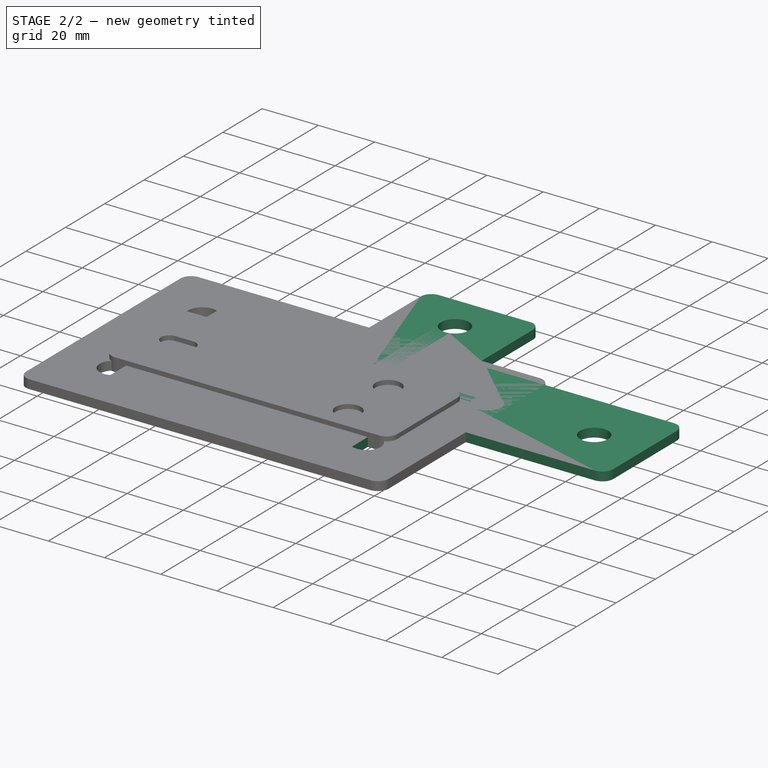
[diagram: stage 2 of 2 — iso view after this stage's code; geometry added in this stage tinted green]
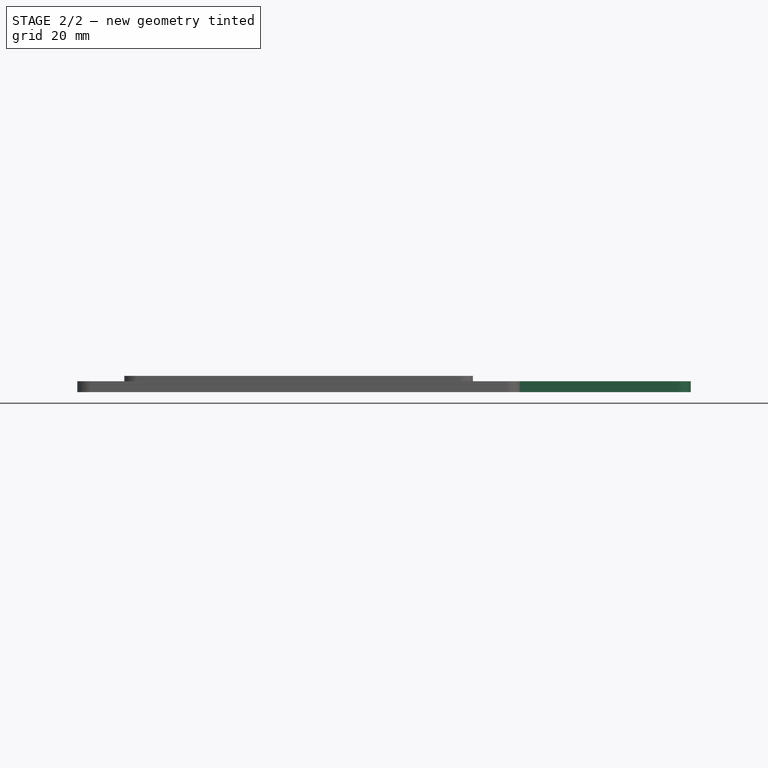
[diagram: stage 2 of 2 — front view after this stage's code; geometry added in this stage tinted green]
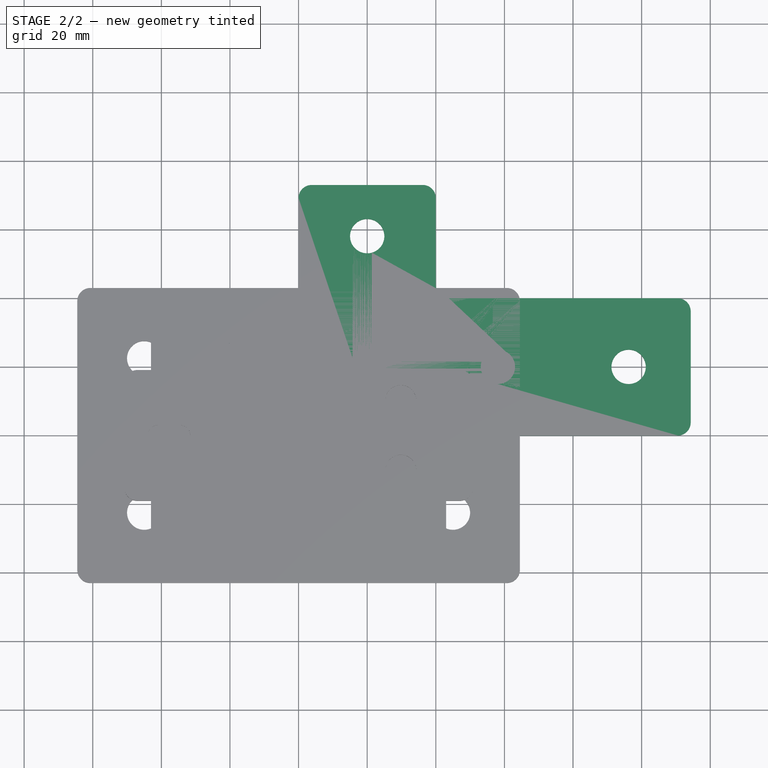
[diagram: stage 2 of 2 — top view after this stage's code; geometry added in this stage tinted green]
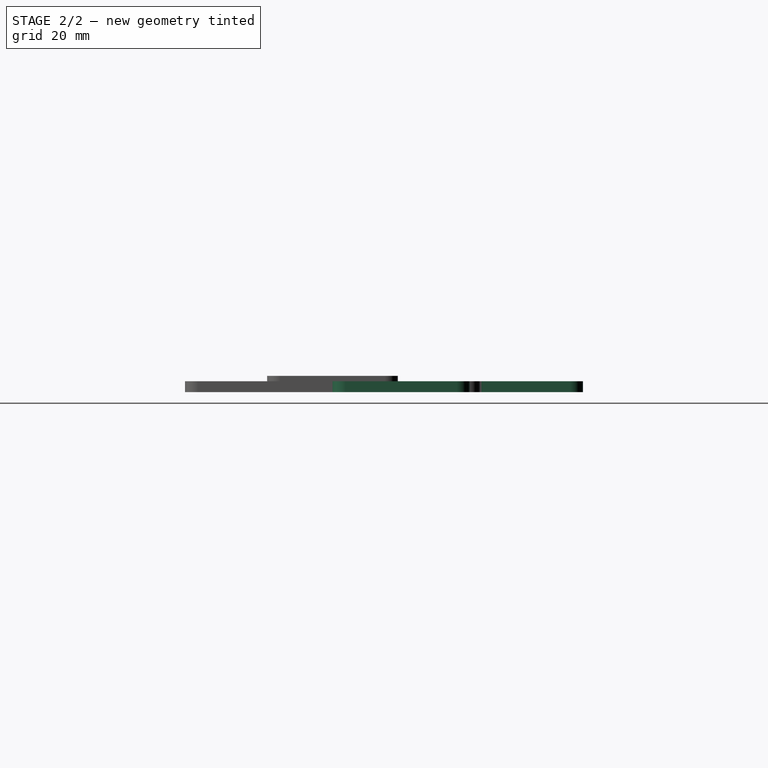
[diagram: stage 2 of 2 — right view after this stage's code; geometry added in this stage tinted green]
FEATURE [Sketcher::SketchObject] Sketch
  FullyConstrained = true
  MapMode = 5
  Support = -> [XY_Plane]
  sketch-geometry (16):
    g0: LineSegment StartX=-39.19 StartY=43 StartZ=0 EndX=39.19 EndY=43 EndZ=0
    g1: LineSegment StartX=43 StartY=39.19 StartZ=0 EndX=43 EndY=-39.19 EndZ=0
    g2: LineSegment StartX=39.19 StartY=-43 StartZ=0 EndX=-39.19 EndY=-43 EndZ=0
    g3: LineSegment StartX=-43 StartY=-39.19 StartZ=0 EndX=-43 EndY=39.19 EndZ=0
    g4: Circle CenterX=-22.5 CenterY=22.5 CenterZ=0 NormalX=0 NormalY=0 NormalZ=1 AngleXU=0 Radius=5
    g5: Circle CenterX=22.5 CenterY=22.5 CenterZ=0 NormalX=0 NormalY=0 NormalZ=1 AngleXU=0 Radius=5
    g6: Circle CenterX=22.5 CenterY=-22.5 CenterZ=0 NormalX=0 NormalY=0 NormalZ=1 AngleXU=0 Radius=5
    g7: Circle CenterX=-22.5 CenterY=-22.5 CenterZ=0 NormalX=0 NormalY=0 NormalZ=1 AngleXU=0 Radius=5
    g8: ArcOfCircle CenterX=39.19 CenterY=39.19 CenterZ=0 NormalX=0 NormalY=0 NormalZ=1 AngleXU=0 Radius=3.81 StartAngle=-9e-16 EndAngle=1.5708
    g9: GeomPoint X=43 Y=43 Z=0
    g10: ArcOfCircle CenterX=-39.19 CenterY=39.19 CenterZ=0 NormalX=0 NormalY=0 NormalZ=1 AngleXU=0 Radius=3.81 StartAngle=1.5708 EndAngle=3.14159
    g11: GeomPoint X=-43 Y=43 Z=0
    g12: ArcOfCircle CenterX=-39.19 CenterY=-39.19 CenterZ=0 NormalX=0 NormalY=0 NormalZ=1 AngleXU=0 Radius=3.81 StartAngle=3.14159 EndAngle=4.71239
    g13: GeomPoint X=-43 Y=-43 Z=0
    g14: ArcOfCircle CenterX=39.19 CenterY=-39.19 CenterZ=0 NormalX=0 NormalY=0 NormalZ=1 AngleXU=0 Radius=3.81 StartAngle=4.71239 EndAngle=6.28319
    g15: GeomPoint X=43 Y=-43 Z=0
  constraints (37):
    c: Horizontal(g0)
    c: Horizontal(g2)
    c: Vertical(g1)
    c: Vertical(g3)
    c: Symmetric(g15,g11,g-1)
    c: DistanceY(g13,g11) = 86
    c: DistanceX(g11,g9) = 86
    c: Equal(g4,g7)
    c: Equal(g7,g6)
    c: Equal(g6,g5)
    c: Diameter(g4) = 10
    c: Symmetric(g4,g7,g-1)
    c: Horizontal(g5,g4)
    c: Vertical(g6,g5)
    c: Symmetric(g7,g6,g-2)
    c: DistanceY(g-1,g5) = 22.5
    c: PointOnObject(g9,g1)
    c: PointOnObject(g9,g0)
    c: Tangent(g1,g8) = 1.5708
    c: Tangent(g0,g8) = 1.5708
    c: PointOnObject(g11,g0)
    c: PointOnObject(g11,g3)
    c: Tangent(g0,g10) = 1.5708
    c: Tangent(g3,g10) = 1.5708
    c: PointOnObject(g13,g3)
    c: PointOnObject(g13,g2)
    c: Tangent(g3,g12) = 1.5708
    c: Tangent(g2,g12) = 1.5708
    c: PointOnObject(g15,g2)
    c: PointOnObject(g15,g1)
    c: Tangent(g2,g14) = 1.5708
    c: Tangent(g1,g14) = 1.5708
    c: Equal(g10,g8)
    c: Equal(g8,g14)
    c: Equal(g14,g12)
    c: Radius(g10) = 3.81
    c: DistanceX(g4,g5) = 45
FEATURE [PartDesign::Pad] Pad
  Direction = (0,0,1)
  Length = 3.175
  Length2 = 10
  Profile = -> Sketch
  ReferenceAxis = -> Sketch [N_Axis]
  Type = 0
FEATURE [Sketcher::SketchObject] Sketch001
  FullyConstrained = false
  MapMode = 5
  Support = -> [XY_Plane001]
  sketch-geometry (24):
    g0: LineSegment StartX=0 StartY=69.215 StartZ=0 EndX=0 EndY=3.81 EndZ=0
    g1: LineSegment StartX=3.81 StartY=0 StartZ=0 EndX=110.49 EndY=0 EndZ=0
    g2: LineSegment StartX=114.3 StartY=3.81 StartZ=0 EndX=114.3 EndY=36.19 EndZ=0
    g3: LineSegment StartX=110.49 StartY=40 StartZ=0 EndX=43.81 EndY=40 EndZ=0
    g4: LineSegment StartX=40 StartY=43.81 StartZ=0 EndX=40 EndY=69.215 EndZ=0
    g5: LineSegment StartX=36.19 StartY=73.025 StartZ=0 EndX=3.81 EndY=73.025 EndZ=0
    g6: Circle CenterX=20 CenterY=58.1 CenterZ=0 NormalX=0 NormalY=0 NormalZ=1 AngleXU=0 Radius=5
    g7: Circle CenterX=20 CenterY=20 CenterZ=0 NormalX=0 NormalY=0 NormalZ=1 AngleXU=0 Radius=5
    g8: Circle CenterX=58.1 CenterY=20 CenterZ=0 NormalX=0 NormalY=0 NormalZ=1 AngleXU=0 Radius=5
    g9: Circle CenterX=96.2 CenterY=20 CenterZ=0 NormalX=0 NormalY=0 NormalZ=1 AngleXU=0 Radius=5
    g10: LineSegment StartX=20 StartY=102.934 StartZ=0 EndX=20 EndY=-36.3118 EndZ=0
    g11: LineSegment StartX=-45.5842 StartY=20 StartZ=0 EndX=140.508 EndY=20 EndZ=0
    g12: ArcOfCircle CenterX=36.19 CenterY=69.215 CenterZ=0 NormalX=0 NormalY=0 NormalZ=1 AngleXU=0 Radius=3.81 StartAngle=5e-16 EndAngle=1.5708
    g13: GeomPoint X=40 Y=73.025 Z=0
    g14: ArcOfCircle CenterX=3.81 CenterY=69.215 CenterZ=0 NormalX=0 NormalY=0 NormalZ=1 AngleXU=0 Radius=3.81 StartAngle=1.5708 EndAngle=3.14159
    g15: GeomPoint X=0 Y=73.025 Z=0
    g16: ArcOfCircle CenterX=3.81 CenterY=3.81 CenterZ=0 NormalX=0 NormalY=0 NormalZ=1 AngleXU=0 Radius=3.81 StartAngle=3.14159 EndAngle=4.71239
    g17: GeomPoint X=0 Y=0 Z=0
    g18: ArcOfCircle CenterX=110.49 CenterY=3.81 CenterZ=0 NormalX=0 NormalY=0 NormalZ=1 AngleXU=0 Radius=3.81 StartAngle=4.71239 EndAngle=6.28319
    g19: GeomPoint X=114.3 Y=0 Z=0
    g20: ArcOfCircle CenterX=110.49 CenterY=36.19 CenterZ=0 NormalX=0 NormalY=0 NormalZ=1 AngleXU=0 Radius=3.81 StartAngle=-3.6e-15 EndAngle=1.5708
    g21: GeomPoint X=114.3 Y=40 Z=0
    g22: ArcOfCircle CenterX=43.81 CenterY=43.81 CenterZ=0 NormalX=0 NormalY=0 NormalZ=1 AngleXU=0 Radius=3.81 StartAngle=3.14159 EndAngle=4.71239
    g23: GeomPoint X=40 Y=40 Z=0
  constraints (55):
    c: Vertical(g0)
    c: Horizontal(g1)
    c: Vertical(g2)
    c: Horizontal(g3)
    c: Vertical(g4)
    c: Horizontal(g5)
    c: DistanceY(g19,g21) = 40
    c: DistanceX(g17,g19) = 114.3
    c: Coincident(g17,g-1)
    c: DistanceY(g17,g15) = 73.025
    c: Vertical(g7,g6)
    c: Horizontal(g7,g8)
    c: Horizontal(g8,g9)
    c: Equal(g6,g7)
    c: Equal(g7,g8)
    c: Equal(g8,g9)
    c: Diameter(g9) = 10
    c: DistanceY(g7,g6) = 38.1
    c: DistanceX(g7,g8) = 38.1
    c: DistanceX(g8,g9) = 38.1
    c: Symmetric(g13,g15,g10)
    c: PointOnObject(g6,g10)
    c: Symmetric(g19,g21,g11)
    c: PointOnObject(g9,g11)
    c: PointOnObject(g13,g4)
    c: PointOnObject(g13,g5)
    c: Tangent(g4,g12) = -1.5708
    c: Tangent(g5,g12) = -1.5708
    c: PointOnObject(g15,g0)
    c: PointOnObject(g15,g5)
    c: Tangent(g0,g14) = -1.5708
    c: Tangent(g5,g14) = -1.5708
    c: PointOnObject(g17,g0)
    c: PointOnObject(g17,g1)
    c: Tangent(g0,g16) = -1.5708
    c: Tangent(g1,g16) = -1.5708
    c: PointOnObject(g19,g1)
    c: PointOnObject(g19,g2)
    c: Tangent(g1,g18) = -1.5708
    c: Tangent(g2,g18) = -1.5708
    c: PointOnObject(g21,g2)
    c: PointOnObject(g21,g3)
    c: Tangent(g2,g20) = -1.5708
    c: Tangent(g3,g20) = -1.5708
    c: PointOnObject(g23,g3)
    c: PointOnObject(g23,g4)
    c: Tangent(g3,g22) = 1.5708
    c: Tangent(g4,g22) = 1.5708
    c: Equal(g12,g14)
    c: Equal(g14,g22)
    c: Equal(g22,g16)
    c: Equal(g16,g18)
    c: Equal(g18,g20)
    c: Radius(g20) = 3.81
    c: Equal(g2,g5)
FEATURE [PartDesign::Pad] Pad001
  Direction = (0,0,1)
  Length = 3.175
  Length2 = 10
  Profile = -> Sketch001
  ReferenceAxis = -> Sketch001 [N_Axis]
  Type = 0
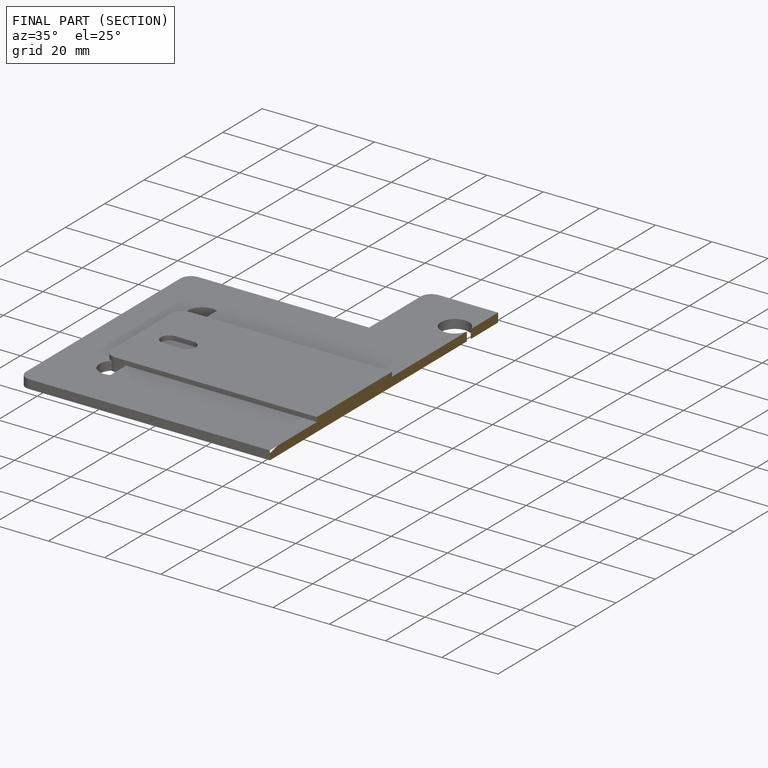
[diagram: finished part — half-section view (interior)]
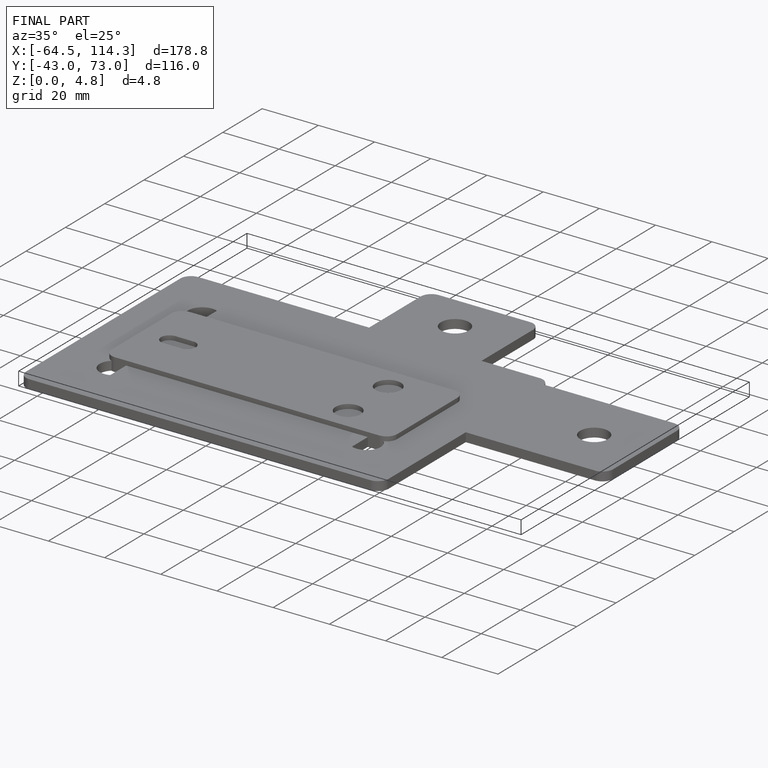
[diagram: finished part — iso view with bounding-box wireframe]
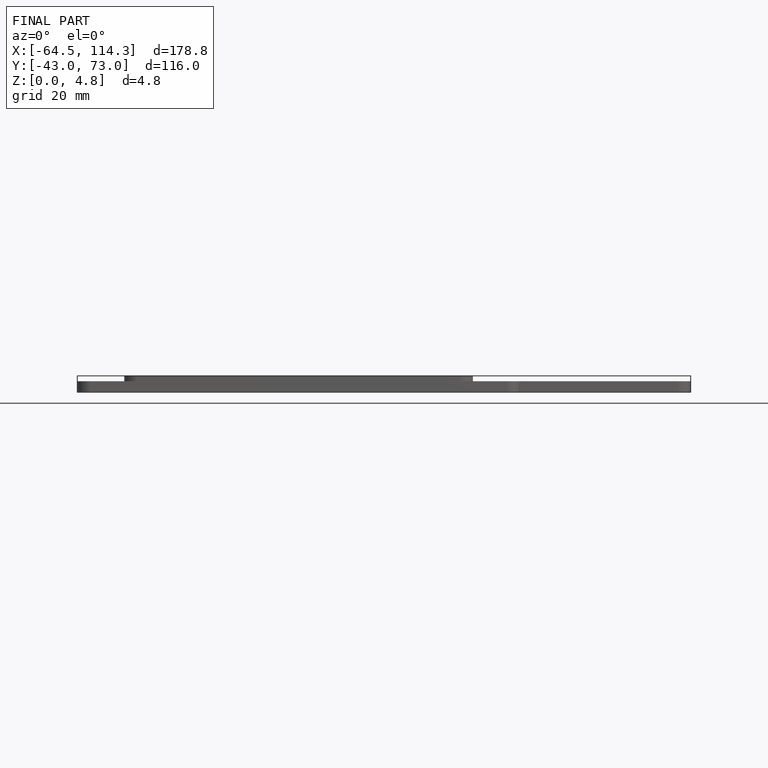
[diagram: finished part — front view with bounding-box wireframe]
